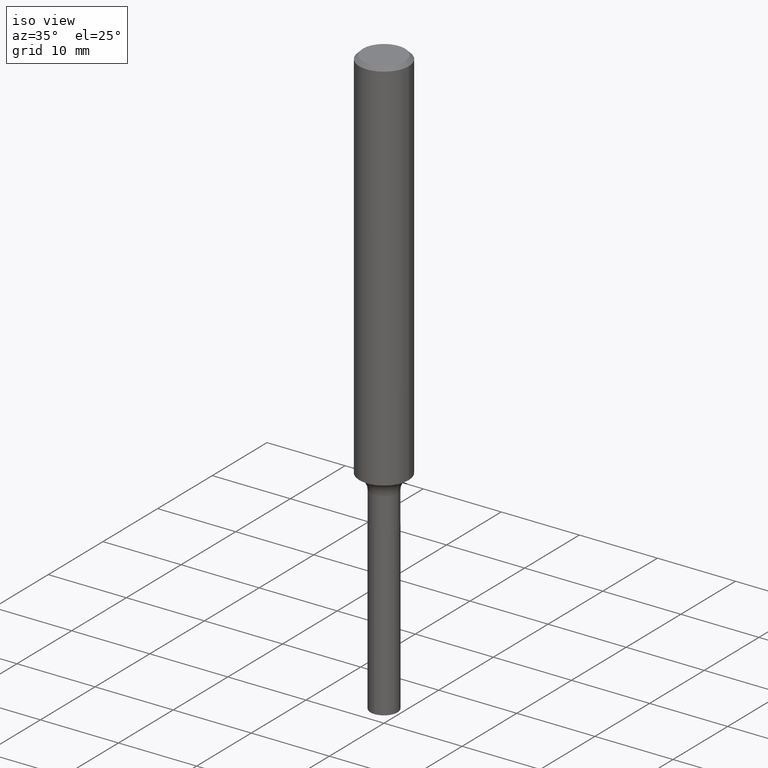
[diagram: clean part render]
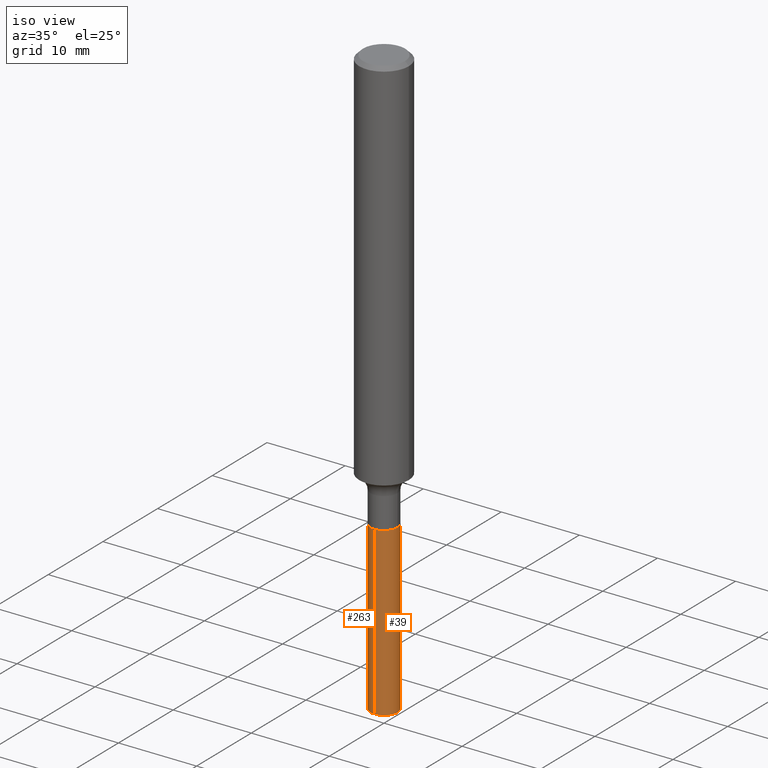
[diagram: same view with one multi-face feature highlighted, each face labeled with its STEP entity id]
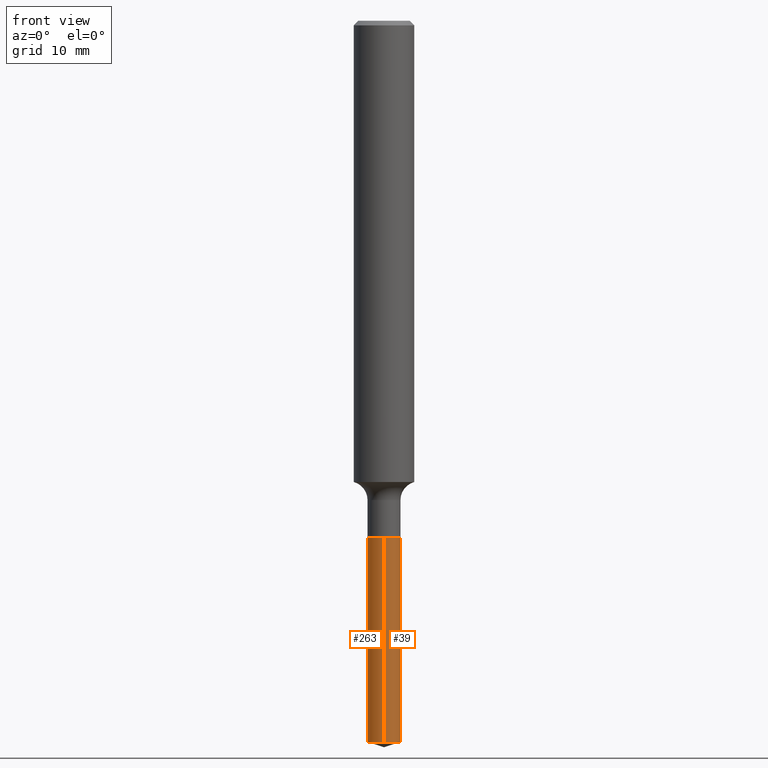
[diagram: same view with one multi-face feature highlighted, each face labeled with its STEP entity id]
A machine part, iso view. The highlighted faces form ONE feature: a constant-radius fillet chain: 2 tangent blend faces with common blend radius 1.7272 mm. The faces share edges in the B-rep.
A second angle (front view) of the same feature is appended — it is thin or edge-on in the first view.
Their STEP definitions:
[1] entity #39 (Cylinder):
#3 = EDGE_CURVE ( 'NONE', #265, #300, #84, .T. ) ;
#6 = DIRECTION ( 'NONE',  ( -2.432147788512749080E-29, 3.510557794335245055E-15, 1.000000000000000000 ) ) ;
#29 = VERTEX_POINT ( 'NONE', #78 ) ;
#39 = ADVANCED_FACE ( 'NONE', ( #345 ), #206, .T. ) ;
#45 = EDGE_CURVE ( 'NONE', #102, #265, #202, .T. ) ;
#63 = CIRCLE ( 'NONE', #234, 0.06800000000000001876 ) ;
#78 = CARTESIAN_POINT ( 'NONE',  ( 4.831690603169410321E-16, 0.06799999999998962430, -2.978559682356229921 ) ) ;
#84 = CIRCLE ( 'NONE', #167, 0.06800000000000000488 ) ;
#100 = DIRECTION ( 'NONE',  ( -2.432147788512749080E-29, 3.510557794335245055E-15, 1.000000000000000000 ) ) ;
#102 = VERTEX_POINT ( 'NONE', #435 ) ;
#115 = CARTESIAN_POINT ( 'NONE',  ( 5.223521370011452416E-29, -7.457804139768961435E-15, -2.136000000000000565 ) ) ;
#123 = DIRECTION ( 'NONE',  ( -6.982962677686265922E-15, -1.000000000000000000, 4.017423520094503828E-15 ) ) ;
#141 = CARTESIAN_POINT ( 'NONE',  ( -4.748414620826138664E-16, -0.06800000000000747113, -2.136000000000000121 ) ) ;
#167 = AXIS2_PLACEMENT_3D ( 'NONE', #115, #6, #220 ) ;
#178 = CARTESIAN_POINT ( 'NONE',  ( 4.831690603169204231E-16, 0.06799999999999255251, -2.136000000000000565 ) ) ;
#198 = AXIS2_PLACEMENT_3D ( 'NONE', #416, #458, #123 ) ;
#202 = LINE ( 'NONE', #238, #400 ) ;
#206 = CYLINDRICAL_SURFACE ( 'NONE', #198, 0.06800000000000001876 ) ;
#217 = ORIENTED_EDGE ( 'NONE', *, *, #441, .T. ) ;
#218 = CARTESIAN_POINT ( 'NONE',  ( 4.831690603169411307E-16, 0.06799999999999255251, -2.136000000000000565 ) ) ;
#220 = DIRECTION ( 'NONE',  ( -6.982962677686265922E-15, -1.000000000000000000, 4.017423520094504617E-15 ) ) ;
#234 = AXIS2_PLACEMENT_3D ( 'NONE', #430, #100, #296 ) ;
#238 = CARTESIAN_POINT ( 'NONE',  ( -4.748414620826139650E-16, -0.06800000000000747113, -2.136000000000000121 ) ) ;
#256 = ORIENTED_EDGE ( 'NONE', *, *, #45, .F. ) ;
#265 = VERTEX_POINT ( 'NONE', #141 ) ;
#296 = DIRECTION ( 'NONE',  ( -6.982962677686265922E-15, -1.000000000000000000, 0.000000000000000000 ) ) ;
#299 = ORIENTED_EDGE ( 'NONE', *, *, #414, .T. ) ;
#300 = VERTEX_POINT ( 'NONE', #218 ) ;
#306 = DIRECTION ( 'NONE',  ( -2.432147788512749080E-29, 3.510557794335244661E-15, 1.000000000000000000 ) ) ;
#312 = VECTOR ( 'NONE', #320, 39.37007874015748143 ) ;
#320 = DIRECTION ( 'NONE',  ( -2.432147788512749080E-29, 3.510557794335244661E-15, 1.000000000000000000 ) ) ;
#345 = FACE_OUTER_BOUND ( 'NONE', #375, .T. ) ;
#355 = LINE ( 'NONE', #178, #312 ) ;
#375 = EDGE_LOOP ( 'NONE', ( #217, #299, #476, #256 ) ) ;
#400 = VECTOR ( 'NONE', #306, 39.37007874015748143 ) ;
#414 = EDGE_CURVE ( 'NONE', #29, #300, #355, .T. ) ;
#416 = CARTESIAN_POINT ( 'NONE',  ( 5.223521370011452416E-29, -7.457804139768961435E-15, -2.136000000000000565 ) ) ;
#430 = CARTESIAN_POINT ( 'NONE',  ( 7.272751038144160854E-29, -1.041565859985725126E-14, -2.978559682356229921 ) ) ;
#435 = CARTESIAN_POINT ( 'NONE',  ( -4.748414620825935532E-16, -0.06800000000001045486, -2.978559682356229921 ) ) ;
#441 = EDGE_CURVE ( 'NONE', #102, #29, #63, .T. ) ;
#458 = DIRECTION ( 'NONE',  ( -2.432147788512749080E-29, 3.510557794335245055E-15, 1.000000000000000000 ) ) ;
#476 = ORIENTED_EDGE ( 'NONE', *, *, #3, .F. ) ;
[2] entity #263 (Cylinder):
#11 = DIRECTION ( 'NONE',  ( -6.982962677686265922E-15, -1.000000000000000000, 4.017423520094504617E-15 ) ) ;
#29 = VERTEX_POINT ( 'NONE', #78 ) ;
#35 = EDGE_CURVE ( 'NONE', #29, #102, #352, .T. ) ;
#45 = EDGE_CURVE ( 'NONE', #102, #265, #202, .T. ) ;
#47 = CARTESIAN_POINT ( 'NONE',  ( 5.223521370011452416E-29, -7.457804139768961435E-15, -2.136000000000000565 ) ) ;
#78 = CARTESIAN_POINT ( 'NONE',  ( 4.831690603169410321E-16, 0.06799999999998962430, -2.978559682356229921 ) ) ;
#88 = DIRECTION ( 'NONE',  ( -2.432147788512749080E-29, 3.510557794335245055E-15, 1.000000000000000000 ) ) ;
#102 = VERTEX_POINT ( 'NONE', #435 ) ;
#120 = CIRCLE ( 'NONE', #179, 0.06800000000000000488 ) ;
#131 = FACE_OUTER_BOUND ( 'NONE', #152, .T. ) ;
#134 = CARTESIAN_POINT ( 'NONE',  ( 5.223521370011452416E-29, -7.457804139768961435E-15, -2.136000000000000565 ) ) ;
#136 = DIRECTION ( 'NONE',  ( -6.982962677686265922E-15, -1.000000000000000000, 4.017423520094503828E-15 ) ) ;
#141 = CARTESIAN_POINT ( 'NONE',  ( -4.748414620826138664E-16, -0.06800000000000747113, -2.136000000000000121 ) ) ;
#152 = EDGE_LOOP ( 'NONE', ( #182, #480, #481, #408 ) ) ;
#156 = AXIS2_PLACEMENT_3D ( 'NONE', #47, #203, #136 ) ;
#170 = EDGE_CURVE ( 'NONE', #300, #265, #120, .T. ) ;
#178 = CARTESIAN_POINT ( 'NONE',  ( 4.831690603169204231E-16, 0.06799999999999255251, -2.136000000000000565 ) ) ;
#179 = AXIS2_PLACEMENT_3D ( 'NONE', #134, #292, #11 ) ;
#182 = ORIENTED_EDGE ( 'NONE', *, *, #414, .F. ) ;
#197 = DIRECTION ( 'NONE',  ( -6.982962677686265922E-15, -1.000000000000000000, 0.000000000000000000 ) ) ;
#202 = LINE ( 'NONE', #238, #400 ) ;
#203 = DIRECTION ( 'NONE',  ( -2.432147788512749080E-29, 3.510557794335245055E-15, 1.000000000000000000 ) ) ;
#218 = CARTESIAN_POINT ( 'NONE',  ( 4.831690603169411307E-16, 0.06799999999999255251, -2.136000000000000565 ) ) ;
#238 = CARTESIAN_POINT ( 'NONE',  ( -4.748414620826139650E-16, -0.06800000000000747113, -2.136000000000000121 ) ) ;
#263 = ADVANCED_FACE ( 'NONE', ( #131 ), #423, .T. ) ;
#265 = VERTEX_POINT ( 'NONE', #141 ) ;
#292 = DIRECTION ( 'NONE',  ( -2.432147788512749080E-29, 3.510557794335245055E-15, 1.000000000000000000 ) ) ;
#300 = VERTEX_POINT ( 'NONE', #218 ) ;
#306 = DIRECTION ( 'NONE',  ( -2.432147788512749080E-29, 3.510557794335244661E-15, 1.000000000000000000 ) ) ;
#312 = VECTOR ( 'NONE', #320, 39.37007874015748143 ) ;
#320 = DIRECTION ( 'NONE',  ( -2.432147788512749080E-29, 3.510557794335244661E-15, 1.000000000000000000 ) ) ;
#352 = CIRCLE ( 'NONE', #385, 0.06800000000000001876 ) ;
#355 = LINE ( 'NONE', #178, #312 ) ;
#385 = AXIS2_PLACEMENT_3D ( 'NONE', #419, #88, #197 ) ;
#400 = VECTOR ( 'NONE', #306, 39.37007874015748143 ) ;
#408 = ORIENTED_EDGE ( 'NONE', *, *, #170, .F. ) ;
#414 = EDGE_CURVE ( 'NONE', #29, #300, #355, .T. ) ;
#419 = CARTESIAN_POINT ( 'NONE',  ( 7.272751038144160854E-29, -1.041565859985725126E-14, -2.978559682356229921 ) ) ;
#423 = CYLINDRICAL_SURFACE ( 'NONE', #156, 0.06800000000000001876 ) ;
#435 = CARTESIAN_POINT ( 'NONE',  ( -4.748414620825935532E-16, -0.06800000000001045486, -2.978559682356229921 ) ) ;
#480 = ORIENTED_EDGE ( 'NONE', *, *, #35, .T. ) ;
#481 = ORIENTED_EDGE ( 'NONE', *, *, #45, .T. ) ;